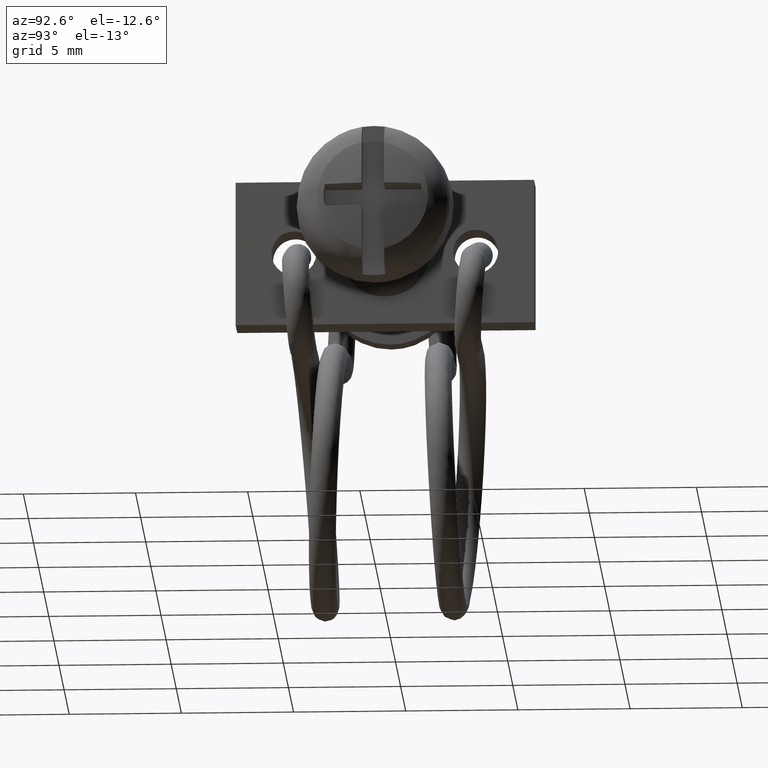
[diagram: clean part render]
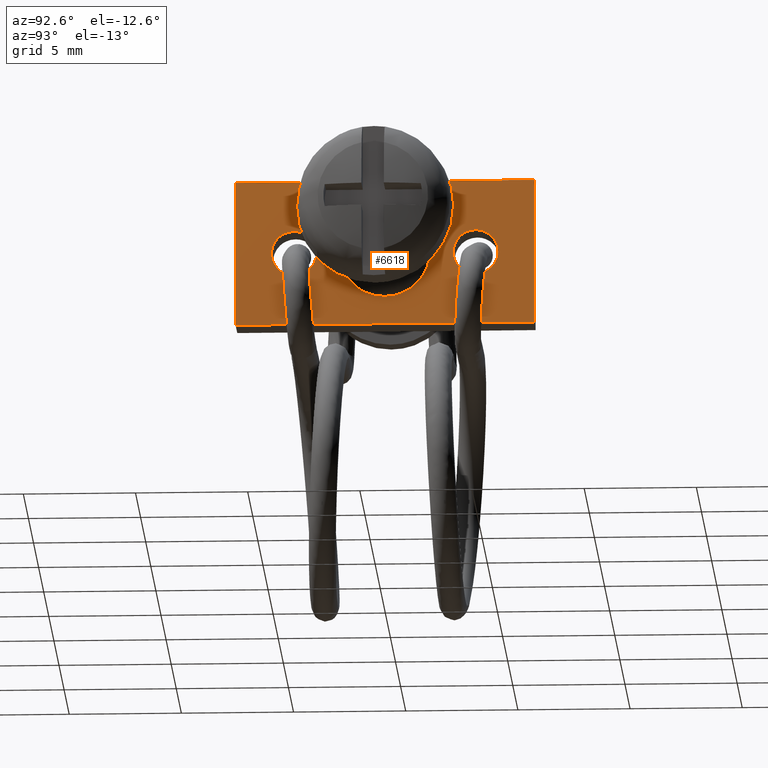
[diagram: same view with one face highlighted and labeled with its STEP entity id]
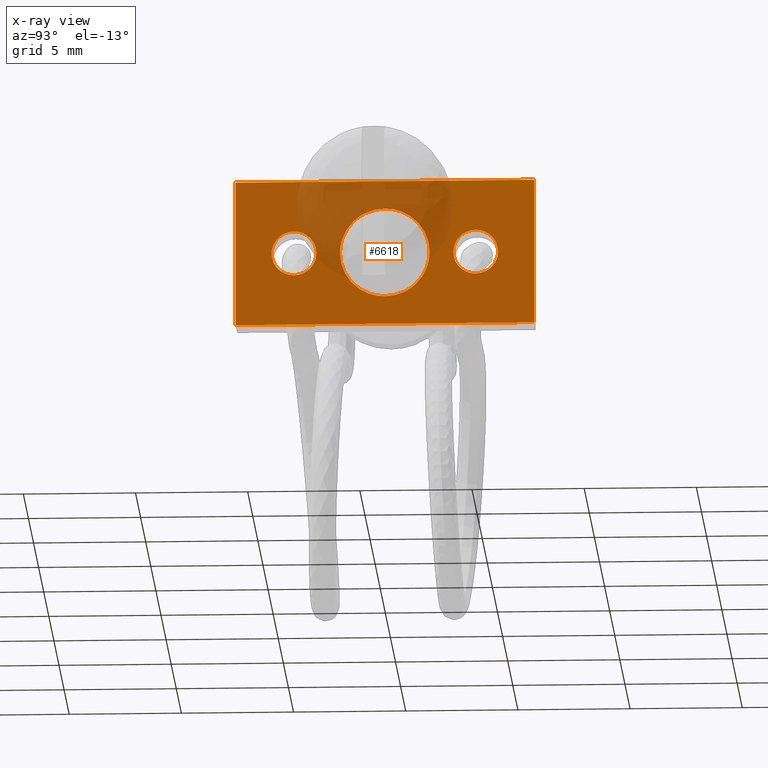
[diagram: x-ray of the same camera — body ghosted, the highlighted face saturated]
A machine part, auxiliary view. The second image highlights one B-rep face of the part: STEP entity #6618.
The next image is the same camera in x-ray: the body ghosted, the highlighted face saturated — about 23% of this face is hidden behind the body in this view.
In plain terms, the highlighted face is a freeform B-spline surface patch.
Its self-contained STEP definition (entity closure, byte-faithful):
#5966=CARTESIAN_POINT('',(-9.500000000000815,-1.376709079029239,1.450748702476584));
#5967=VERTEX_POINT('',#5966);
#5968=CARTESIAN_POINT('',(-9.500000000000002,-1.999999999999975,-0.000000314411481));
#5969=VERTEX_POINT('',#5968);
#5970=CARTESIAN_POINT('',(-9.500000000000815,-1.376709079029239,1.450748702476584));
#5971=CARTESIAN_POINT('',(-9.500000000000780,-1.487115128803505,1.346021764698034));
#5972=CARTESIAN_POINT('',(-9.500000000000657,-1.634626073437236,1.169894739215420));
#5973=CARTESIAN_POINT('',(-9.500000000000483,-1.809012753894810,0.869691408881697));
#5974=CARTESIAN_POINT('',(-9.500000000000320,-1.954013548357849,0.507195466109417));
#5975=CARTESIAN_POINT('',(-9.500000000000084,-2.000080448949208,0.194450650614322));
#5976=CARTESIAN_POINT('',(-9.500000000000002,-1.999999999999975,-0.000000314411481));
#5977=B_SPLINE_CURVE_WITH_KNOTS('',3,(#5970,#5971,#5972,#5973,#5974,#5975,#5976),.UNSPECIFIED.,.F.,.U.,(4,1,1,1,4),(8.134953E-009,0.456516053018496,0.684775122625564,1.039841108499463,1.623167387036368),.UNSPECIFIED.);
#5978=EDGE_CURVE('',#5967,#5969,#5977,.T.);
#5980=CARTESIAN_POINT('',(-9.500000000000000,0.0,-2.000000000000199));
#5981=VERTEX_POINT('',#5980);
#5982=CARTESIAN_POINT('',(-9.500000000000002,-1.999999999999975,-0.000000314411481));
#5983=CARTESIAN_POINT('',(-9.500000000000011,-2.000044116203131,-0.163629287434392));
#5984=CARTESIAN_POINT('',(-9.499999999999993,-1.965660920491134,-0.441768231659991));
#5985=CARTESIAN_POINT('',(-9.499999999999995,-1.834767858886433,-0.822247915414405));
#5986=CARTESIAN_POINT('',(-9.500000000000007,-1.646511593944460,-1.159400305872440));
#5987=CARTESIAN_POINT('',(-9.499999999999957,-1.409954496513490,-1.433637364359804));
#5988=CARTESIAN_POINT('',(-9.500000000000078,-1.136013336266264,-1.655631689837535));
#5989=CARTESIAN_POINT('',(-9.499999999999902,-0.873517622762000,-1.808619379248497));
#5990=CARTESIAN_POINT('',(-9.500000000000050,-0.490829681713295,-1.956265768854421));
#5991=CARTESIAN_POINT('',(-9.500000000000052,-0.196361985343634,-2.000087536257534));
#5992=CARTESIAN_POINT('',(-9.500000000000000,0.0,-2.000000000000199));
#5993=B_SPLINE_CURVE_WITH_KNOTS('',3,(#5982,#5983,#5984,#5985,#5986,#5987,#5988,#5989,#5990,#5991,#5992),.UNSPECIFIED.,.F.,.U.,(4,1,1,1,1,1,1,1,4),(0.000000029857418,0.490876155249593,0.834491673996547,1.202655308193045,1.644427914901978,1.914412801574329,2.258033519522070,2.552560821894600,3.141612188542830),.UNSPECIFIED.);
#5994=EDGE_CURVE('',#5969,#5981,#5993,.T.);
#5996=CARTESIAN_POINT('',(-9.500000000000814,1.376709079029236,-1.450748702476979));
#5997=VERTEX_POINT('',#5996);
#5998=CARTESIAN_POINT('',(-9.500000000000000,0.0,-2.000000000000199));
#5999=CARTESIAN_POINT('',(-9.500000000000108,0.166084521113137,-2.000042704171178));
#6000=CARTESIAN_POINT('',(-9.500000000000252,0.411226054860074,-1.969281259777765));
#6001=CARTESIAN_POINT('',(-9.500000000000435,0.750912095307538,-1.861042457527884));
#6002=CARTESIAN_POINT('',(-9.500000000000691,1.058069195873086,-1.712385451306863));
#6003=CARTESIAN_POINT('',(-9.500000000000679,1.267730295617099,-1.554203975134609));
#6004=CARTESIAN_POINT('',(-9.500000000000814,1.376709079029236,-1.450748702476979));
#6005=B_SPLINE_CURVE_WITH_KNOTS('',3,(#5998,#5999,#6000,#6001,#6002,#6003,#6004),.UNSPECIFIED.,.F.,.U.,(4,1,1,1,4),(7.946821E-009,0.498240548504049,0.735501835958479,1.067655790018470,1.518445297156764),.UNSPECIFIED.);
#6006=EDGE_CURVE('',#5981,#5997,#6005,.T.);
#6081=CARTESIAN_POINT('',(-9.500000000000000,0.0,1.999999999999801));
#6082=VERTEX_POINT('',#6081);
#6083=CARTESIAN_POINT('',(-9.500000000000000,0.0,1.999999999999801));
#6084=CARTESIAN_POINT('',(-9.500000000000132,-0.181907486150735,2.000072001593793));
#6085=CARTESIAN_POINT('',(-9.500000000000245,-0.442843831285815,1.964133143003403));
#6086=CARTESIAN_POINT('',(-9.500000000000480,-0.817324124900658,1.834967883135235));
#6087=CARTESIAN_POINT('',(-9.500000000000643,-1.104515735034438,1.680926534298437));
#6088=CARTESIAN_POINT('',(-9.500000000000780,-1.296400611072659,1.526967336939438));
#6089=CARTESIAN_POINT('',(-9.500000000000815,-1.376709079029239,1.450748702476584));
#6090=B_SPLINE_CURVE_WITH_KNOTS('',3,(#6083,#6084,#6085,#6086,#6087,#6088,#6089),.UNSPECIFIED.,.F.,.U.,(4,1,1,1,4),(7.946682E-009,0.545694118019529,0.782943469145410,1.186285554999730,1.518445297156766),.UNSPECIFIED.);
#6091=EDGE_CURVE('',#6082,#5967,#6090,.T.);
#6132=CARTESIAN_POINT('',(-9.499999999999998,1.999999999999975,0.000000314411100));
#6133=VERTEX_POINT('',#6132);
#6134=CARTESIAN_POINT('',(-9.500000000000814,1.376709079029236,-1.450748702476979));
#6135=CARTESIAN_POINT('',(-9.500000000000760,1.487113401391050,-1.346020246561402));
#6136=CARTESIAN_POINT('',(-9.500000000000659,1.634628442392524,-1.169896380188224));
#6137=CARTESIAN_POINT('',(-9.500000000000481,1.809010877484358,-0.869690546883229));
#6138=CARTESIAN_POINT('',(-9.500000000000295,1.954015781879980,-0.507196412897680));
#6139=CARTESIAN_POINT('',(-9.500000000000084,2.000079648968578,-0.194450212014774));
#6140=CARTESIAN_POINT('',(-9.499999999999998,1.999999999999975,0.000000314411100));
#6141=B_SPLINE_CURVE_WITH_KNOTS('',3,(#6134,#6135,#6136,#6137,#6138,#6139,#6140),.UNSPECIFIED.,.F.,.U.,(4,1,1,1,4),(8.135005E-009,0.456516053018525,0.684775122625586,1.039841108499481,1.623167387036384),.UNSPECIFIED.);
#6142=EDGE_CURVE('',#5997,#6133,#6141,.T.);
#6144=CARTESIAN_POINT('',(-9.499999999999998,1.999999999999975,0.000000314411100));
#6145=CARTESIAN_POINT('',(-9.499999999999991,2.000089254815843,0.196359187987618));
#6146=CARTESIAN_POINT('',(-9.500000000000009,1.947760160714175,0.548100757109093));
#6147=CARTESIAN_POINT('',(-9.499999999999989,1.750260977529604,1.001145324245661));
#6148=CARTESIAN_POINT('',(-9.499999999999993,1.507262218224176,1.332974274035051));
#6149=CARTESIAN_POINT('',(-9.499999999999986,1.194439502088072,1.623625262949756));
#6150=CARTESIAN_POINT('',(-9.500000000000016,0.867774863905527,1.816698224355190));
#6151=CARTESIAN_POINT('',(-9.499999999999984,0.449935319837691,1.963289719253419));
#6152=CARTESIAN_POINT('',(-9.500000000000096,0.179994419190639,2.000068684007718));
#6153=CARTESIAN_POINT('',(-9.500000000000000,0.0,1.999999999999801));
#6154=B_SPLINE_CURVE_WITH_KNOTS('',3,(#6144,#6145,#6146,#6147,#6148,#6149,#6150,#6151,#6152,#6153),.UNSPECIFIED.,.F.,.U.,(4,1,1,1,1,1,1,4),(0.000000029858207,0.589051617702901,1.055386999545425,1.472633917550332,1.816235903106768,2.331665042406568,2.601651754572451,3.141612188542815),.UNSPECIFIED.);
#6155=EDGE_CURVE('',#6133,#6082,#6154,.T.);
#6178=CARTESIAN_POINT('',(-9.500000000001439,-4.738354523422574,0.725374265763581));
#6179=VERTEX_POINT('',#6178);
#6180=CARTESIAN_POINT('',(-9.500000000000000,-5.049999999999899,-0.000000449919454));
#6181=VERTEX_POINT('',#6180);
#6182=CARTESIAN_POINT('',(-9.500000000001439,-4.738354523422574,0.725374265763581));
#6183=CARTESIAN_POINT('',(-9.500000000001338,-4.787418062386045,0.678825423039063));
#6184=CARTESIAN_POINT('',(-9.500000000001146,-4.881581770547586,0.569279895143084));
#6185=CARTESIAN_POINT('',(-9.500000000000648,-5.010887027732976,0.329631566267178));
#6186=CARTESIAN_POINT('',(-9.500000000000249,-5.050104549468335,0.126825837823413));
#6187=CARTESIAN_POINT('',(-9.500000000000000,-5.049999999999899,-0.000000449919454));
#6188=B_SPLINE_CURVE_WITH_KNOTS('',3,(#6182,#6183,#6184,#6185,#6186,#6187),.UNSPECIFIED.,.F.,.U.,(4,1,1,4),(0.000000010579796,0.202895979581082,0.431151472596185,0.811583909418584),.UNSPECIFIED.);
#6189=EDGE_CURVE('',#6179,#6181,#6188,.T.);
#6191=CARTESIAN_POINT('',(-9.500000000000000,-4.050000000000000,-1.000000000000199));
#6192=VERTEX_POINT('',#6191);
#6193=CARTESIAN_POINT('',(-9.500000000000000,-5.049999999999899,-0.000000449919454));
#6194=CARTESIAN_POINT('',(-9.499999999999995,-5.050105110180470,-0.122737245504713));
#6195=CARTESIAN_POINT('',(-9.500000000000018,-5.015681003673338,-0.306733685313235));
#6196=CARTESIAN_POINT('',(-9.500000000000000,-4.913464619621739,-0.512839644572620));
#6197=CARTESIAN_POINT('',(-9.499999999999982,-4.813456759475157,-0.653014365689045));
#6198=CARTESIAN_POINT('',(-9.500000000000064,-4.697203392797114,-0.769272574159498));
#6199=CARTESIAN_POINT('',(-9.499999999999998,-4.538836289407315,-0.879361608178679));
#6200=CARTESIAN_POINT('',(-9.500000000000018,-4.328137765123507,-0.972772789439482));
#6201=CARTESIAN_POINT('',(-9.500000000000016,-4.152270131751509,-1.000052587543137));
#6202=CARTESIAN_POINT('',(-9.500000000000000,-4.050000000000000,-1.000000000000199));
#6203=B_SPLINE_CURVE_WITH_KNOTS('',3,(#6193,#6194,#6195,#6196,#6197,#6198,#6199,#6200,#6201,#6202),.UNSPECIFIED.,.F.,.U.,(4,1,1,1,1,1,1,4),(0.000000039961103,0.368157326773437,0.552239904324071,0.687236242789078,0.883569860382519,1.043110182634159,1.264010449412642,1.570805929295552),.UNSPECIFIED.);
#6204=EDGE_CURVE('',#6181,#6192,#6203,.T.);
#6206=CARTESIAN_POINT('',(-9.500000000001439,-3.361645476577425,-0.725374265763980));
#6207=VERTEX_POINT('',#6206);
#6208=CARTESIAN_POINT('',(-9.500000000000000,-4.050000000000000,-1.000000000000199));
#6209=CARTESIAN_POINT('',(-9.500000000000133,-3.982776803582577,-1.000009497977958));
#6210=CARTESIAN_POINT('',(-9.500000000000425,-3.852295705180737,-0.986785599881482));
#6211=CARTESIAN_POINT('',(-9.500000000000910,-3.609152586263981,-0.912539963478159));
#6212=CARTESIAN_POINT('',(-9.500000000001261,-3.450508364433176,-0.809839300214873));
#6213=CARTESIAN_POINT('',(-9.500000000001439,-3.361645476577425,-0.725374265763980));
#6214=B_SPLINE_CURVE_WITH_KNOTS('',3,(#6208,#6209,#6210,#6211,#6212,#6213),.UNSPECIFIED.,.F.,.U.,(4,1,1,4),(8.553137E-009,0.201668597099933,0.391468694515761,0.759222668002391),.UNSPECIFIED.);
#6215=EDGE_CURVE('',#6192,#6207,#6214,.T.);
#6286=CARTESIAN_POINT('',(-9.500000000000000,-4.050000000000000,0.999999999999801));
#6287=VERTEX_POINT('',#6286);
#6288=CARTESIAN_POINT('',(-9.500000000000000,-4.050000000000000,0.999999999999801));
#6289=CARTESIAN_POINT('',(-9.500000000000153,-4.117222979962005,1.000009233305804));
#6290=CARTESIAN_POINT('',(-9.500000000000407,-4.251660351321803,0.986386441003243));
#6291=CARTESIAN_POINT('',(-9.500000000000956,-4.494498982117354,0.910656711613585));
#6292=CARTESIAN_POINT('',(-9.500000000001238,-4.652351628803875,0.807100114617580));
#6293=CARTESIAN_POINT('',(-9.500000000001439,-4.738354523422574,0.725374265763581));
#6294=B_SPLINE_CURVE_WITH_KNOTS('',3,(#6288,#6289,#6290,#6291,#6292,#6293),.UNSPECIFIED.,.F.,.U.,(4,1,1,4),(8.553351E-009,0.201668597100032,0.403335791278576,0.759222668002388),.UNSPECIFIED.);
#6295=EDGE_CURVE('',#6287,#6179,#6294,.T.);
#6334=CARTESIAN_POINT('',(-9.500000000000000,-3.050000000000101,0.000000449919051));
#6335=VERTEX_POINT('',#6334);
#6336=CARTESIAN_POINT('',(-9.500000000001439,-3.361645476577425,-0.725374265763980));
#6337=CARTESIAN_POINT('',(-9.500000000001259,-3.275707716789848,-0.643964538935985));
#6338=CARTESIAN_POINT('',(-9.500000000001055,-3.176646541204527,-0.508976241186064));
#6339=CARTESIAN_POINT('',(-9.500000000000449,-3.074358732882408,-0.257810776177153));
#6340=CARTESIAN_POINT('',(-9.500000000000267,-3.049934981242007,-0.105684288132807));
#6341=CARTESIAN_POINT('',(-9.500000000000000,-3.050000000000101,0.000000449919051));
#6342=B_SPLINE_CURVE_WITH_KNOTS('',3,(#6336,#6337,#6338,#6339,#6340,#6341),.UNSPECIFIED.,.F.,.U.,(4,1,1,4),(0.000000010579376,0.355071599251446,0.494558198732274,0.811583909418583),.UNSPECIFIED.);
#6343=EDGE_CURVE('',#6207,#6335,#6342,.T.);
#6345=CARTESIAN_POINT('',(-9.500000000000000,-3.050000000000101,0.000000449919051));
#6346=CARTESIAN_POINT('',(-9.499999999999991,-3.049990936190874,0.069540645731734));
#6347=CARTESIAN_POINT('',(-9.500000000000011,-3.065420393355500,0.216799720362331));
#6348=CARTESIAN_POINT('',(-9.499999999999957,-3.144332999545902,0.450975673398829));
#6349=CARTESIAN_POINT('',(-9.500000000000108,-3.295958708357728,0.677905998259636));
#6350=CARTESIAN_POINT('',(-9.499999999999924,-3.508868619516251,0.854810699446177));
#6351=CARTESIAN_POINT('',(-9.500000000000112,-3.763680332144181,0.971509338427994));
#6352=CARTESIAN_POINT('',(-9.499999999999927,-3.947731470854623,1.000049725987418));
#6353=CARTESIAN_POINT('',(-9.500000000000000,-4.050000000000000,0.999999999999801));
#6354=B_SPLINE_CURVE_WITH_KNOTS('',3,(#6345,#6346,#6347,#6348,#6349,#6350,#6351,#6352,#6353),.UNSPECIFIED.,.F.,.U.,(4,1,1,1,1,1,4),(0.000000039961002,0.208621811650143,0.441789658292062,0.736321739270893,1.018566480254052,1.264010449412582,1.570805929295559),.UNSPECIFIED.);
#6355=EDGE_CURVE('',#6335,#6287,#6354,.T.);
#6378=CARTESIAN_POINT('',(-9.500000000001439,3.361645476577521,0.725374265763581));
#6379=VERTEX_POINT('',#6378);
#6380=CARTESIAN_POINT('',(-9.500000000000000,3.050000000000196,-0.000000449919452));
#6381=VERTEX_POINT('',#6380);
#6382=CARTESIAN_POINT('',(-9.500000000001439,3.361645476577521,0.725374265763581));
#6383=CARTESIAN_POINT('',(-9.500000000001354,3.312580340018933,0.678826069210260));
#6384=CARTESIAN_POINT('',(-9.500000000001151,3.226723757327473,0.578941428049965));
#6385=CARTESIAN_POINT('',(-9.500000000000814,3.137020314992020,0.419914551150343));
#6386=CARTESIAN_POINT('',(-9.500000000000489,3.068700930700791,0.228240085182169));
#6387=CARTESIAN_POINT('',(-9.500000000000158,3.049972682067252,0.088769882607745));
#6388=CARTESIAN_POINT('',(-9.500000000000000,3.050000000000196,-0.000000449919452));
#6389=B_SPLINE_CURVE_WITH_KNOTS('',3,(#6382,#6383,#6384,#6385,#6386,#6387,#6388),.UNSPECIFIED.,.F.,.U.,(4,1,1,1,4),(0.000000010579413,0.202895979580832,0.393116882976446,0.545281749367045,0.811583909418586),.UNSPECIFIED.);
#6390=EDGE_CURVE('',#6379,#6381,#6389,.T.);
#6392=CARTESIAN_POINT('',(-9.500000000000000,4.050000000000095,-1.000000000000199));
#6393=VERTEX_POINT('',#6392);
#6394=CARTESIAN_POINT('',(-9.500000000000000,3.050000000000196,-0.000000449919452));
#6395=CARTESIAN_POINT('',(-9.500000000000009,3.049894647297335,-0.122735932329639));
#6396=CARTESIAN_POINT('',(-9.500000000000009,3.085854887019441,-0.314909132990824));
#6397=CARTESIAN_POINT('',(-9.499999999999954,3.220625734949450,-0.578618777745497));
#6398=CARTESIAN_POINT('',(-9.500000000000087,3.383488881539313,-0.760544664393805));
#6399=CARTESIAN_POINT('',(-9.499999999999961,3.596405895850760,-0.900902905435543));
#6400=CARTESIAN_POINT('',(-9.499999999999977,3.812747820713256,-0.981315209536455));
#6401=CARTESIAN_POINT('',(-9.500000000000005,3.972278603847219,-1.000013437102359));
#6402=CARTESIAN_POINT('',(-9.500000000000000,4.050000000000095,-1.000000000000199));
#6403=B_SPLINE_CURVE_WITH_KNOTS('',3,(#6394,#6395,#6396,#6397,#6398,#6399,#6400,#6401,#6402),.UNSPECIFIED.,.F.,.U.,(4,1,1,1,1,1,4),(0.000000039960986,0.368157326773290,0.576783292378518,0.883569860382345,1.092198463549801,1.337642432609469,1.570805929295554),.UNSPECIFIED.);
#6404=EDGE_CURVE('',#6381,#6393,#6403,.T.);
#6406=CARTESIAN_POINT('',(-9.500000000001439,4.738354523422670,-0.725374265763980));
#6407=VERTEX_POINT('',#6406);
#6408=CARTESIAN_POINT('',(-9.500000000000000,4.050000000000095,-1.000000000000199));
#6409=CARTESIAN_POINT('',(-9.500000000000227,4.172597915701522,-1.000097235700601));
#6410=CARTESIAN_POINT('',(-9.500000000000878,4.425579549096968,-0.952853635457049));
#6411=CARTESIAN_POINT('',(-9.500000000001172,4.643784857399647,-0.815311298573489));
#6412=CARTESIAN_POINT('',(-9.500000000001439,4.738354523422670,-0.725374265763980));
#6413=B_SPLINE_CURVE_WITH_KNOTS('',3,(#6408,#6409,#6410,#6411,#6412),.UNSPECIFIED.,.F.,.U.,(4,1,4),(8.553139E-009,0.367753982050391,0.759222668002392),.UNSPECIFIED.);
#6414=EDGE_CURVE('',#6393,#6407,#6413,.T.);
#6485=CARTESIAN_POINT('',(-9.500000000000000,4.050000000000095,0.999999999999801));
#6486=VERTEX_POINT('',#6485);
#6487=CARTESIAN_POINT('',(-9.500000000000000,4.050000000000095,0.999999999999801));
#6488=CARTESIAN_POINT('',(-9.500000000000117,3.990686429727544,1.000003223564262));
#6489=CARTESIAN_POINT('',(-9.500000000000414,3.860198986996918,0.988361307769095));
#6490=CARTESIAN_POINT('',(-9.500000000000872,3.615910429725126,0.916901989722339));
#6491=CARTESIAN_POINT('',(-9.500000000001279,3.450502333006129,0.809848126770524));
#6492=CARTESIAN_POINT('',(-9.500000000001439,3.361645476577521,0.725374265763581));
#6493=B_SPLINE_CURVE_WITH_KNOTS('',3,(#6487,#6488,#6489,#6490,#6491,#6492),.UNSPECIFIED.,.F.,.U.,(4,1,1,4),(8.553357E-009,0.177942749731362,0.391468694515793,0.759222668002389),.UNSPECIFIED.);
#6494=EDGE_CURVE('',#6486,#6379,#6493,.T.);
#6533=CARTESIAN_POINT('',(-9.500000000000000,5.049999999999995,0.000000449919050));
#6534=VERTEX_POINT('',#6533);
#6535=CARTESIAN_POINT('',(-9.500000000001439,4.738354523422670,-0.725374265763980));
#6536=CARTESIAN_POINT('',(-9.500000000001290,4.815049065966680,-0.652667671735013));
#6537=CARTESIAN_POINT('',(-9.500000000001016,4.939826790257786,-0.489444912684047));
#6538=CARTESIAN_POINT('',(-9.500000000000375,5.033244565849441,-0.232488455368724));
#6539=CARTESIAN_POINT('',(-9.500000000000227,5.050004128116552,-0.067630301093617));
#6540=CARTESIAN_POINT('',(-9.500000000000000,5.049999999999995,0.000000449919050));
#6541=B_SPLINE_CURVE_WITH_KNOTS('',3,(#6535,#6536,#6537,#6538,#6539,#6540),.UNSPECIFIED.,.F.,.U.,(4,1,1,4),(0.000000010579462,0.317025721272273,0.608687929000420,0.811583909418584),.UNSPECIFIED.);
#6542=EDGE_CURVE('',#6407,#6534,#6541,.T.);
#6544=CARTESIAN_POINT('',(-9.500000000000000,5.049999999999995,0.000000449919050));
#6545=CARTESIAN_POINT('',(-9.499999999999989,5.050039497868993,0.094089161043813));
#6546=CARTESIAN_POINT('',(-9.500000000000023,5.029053486436554,0.241327051821716));
#6547=CARTESIAN_POINT('',(-9.499999999999995,4.953470181510348,0.440886542432500));
#6548=CARTESIAN_POINT('',(-9.499999999999977,4.841505389724900,0.627766317807797));
#6549=CARTESIAN_POINT('',(-9.500000000000114,4.660224444047136,0.809055149410337));
#6550=CARTESIAN_POINT('',(-9.499999999999830,4.385369883288334,0.960330642933407));
#6551=CARTESIAN_POINT('',(-9.500000000000128,4.172731772286919,1.000107517769276));
#6552=CARTESIAN_POINT('',(-9.500000000000000,4.050000000000095,0.999999999999801));
#6553=B_SPLINE_CURVE_WITH_KNOTS('',3,(#6544,#6545,#6546,#6547,#6548,#6549,#6550,#6551,#6552),.UNSPECIFIED.,.F.,.U.,(4,1,1,1,1,1,4),(0.000000039962194,0.282251835127907,0.441789658292850,0.638148152030808,0.932657835533781,1.202648513626810,1.570805929295553),.UNSPECIFIED.);
#6554=EDGE_CURVE('',#6534,#6486,#6553,.T.);
#6559=CARTESIAN_POINT('',(-9.500000000000000,-7.314334974222019,3.574674987401539));
#6560=CARTESIAN_POINT('',(-9.500000000000000,7.314335330955819,3.574674987401539));
#6561=CARTESIAN_POINT('',(-9.500000000000000,-7.314334974222019,-3.574675161745525));
#6562=CARTESIAN_POINT('',(-9.500000000000000,7.314335330955819,-3.574675161745525));
#6563=B_SPLINE_SURFACE_WITH_KNOTS('',1,1,((#6559,#6561),(#6560,#6562)),.UNSPECIFIED.,.F.,.F.,.U.,(2,2),(2,2),(0.0,14.628670305177840),(0.0,7.149350149147064),.UNSPECIFIED.);
#6564=CARTESIAN_POINT('',(-9.500000000000000,6.650000000000000,3.249999999999800));
#6565=VERTEX_POINT('',#6564);
#6566=CARTESIAN_POINT('',(-9.500000000000000,-6.650000000000000,3.249999999999800));
#6567=VERTEX_POINT('',#6566);
#6568=CARTESIAN_POINT('',(-9.500000000000000,6.650000000000000,3.249999999999800));
#6569=CARTESIAN_POINT('',(-9.500000000000000,-6.650000000000000,3.249999999999800));
#6570=QUASI_UNIFORM_CURVE('',1,(#6568,#6569),.UNSPECIFIED.,.F.,.U.);
#6571=EDGE_CURVE('',#6565,#6567,#6570,.T.);
#6572=ORIENTED_EDGE('',*,*,#6571,.T.);
#6573=CARTESIAN_POINT('',(-9.500000000000000,-6.650000000000000,-3.250000000000200));
#6574=VERTEX_POINT('',#6573);
#6575=CARTESIAN_POINT('',(-9.500000000000000,-6.650000000000000,3.249999999999800));
#6576=CARTESIAN_POINT('',(-9.500000000000000,-6.650000000000000,-3.250000000000200));
#6577=QUASI_UNIFORM_CURVE('',1,(#6575,#6576),.UNSPECIFIED.,.F.,.U.);
#6578=EDGE_CURVE('',#6567,#6574,#6577,.T.);
#6579=ORIENTED_EDGE('',*,*,#6578,.T.);
#6580=CARTESIAN_POINT('',(-9.500000000000000,6.650000000000000,-3.250000000000200));
#6581=VERTEX_POINT('',#6580);
#6582=CARTESIAN_POINT('',(-9.500000000000000,-6.650000000000000,-3.250000000000200));
#6583=CARTESIAN_POINT('',(-9.500000000000000,6.650000000000000,-3.250000000000200));
#6584=QUASI_UNIFORM_CURVE('',1,(#6582,#6583),.UNSPECIFIED.,.F.,.U.);
#6585=EDGE_CURVE('',#6574,#6581,#6584,.T.);
#6586=ORIENTED_EDGE('',*,*,#6585,.T.);
#6587=CARTESIAN_POINT('',(-9.500000000000000,6.650000000000000,-3.250000000000200));
#6588=CARTESIAN_POINT('',(-9.500000000000000,6.650000000000000,3.249999999999800));
#6589=QUASI_UNIFORM_CURVE('',1,(#6587,#6588),.UNSPECIFIED.,.F.,.U.);
#6590=EDGE_CURVE('',#6581,#6565,#6589,.T.);
#6591=ORIENTED_EDGE('',*,*,#6590,.T.);
#6592=EDGE_LOOP('',(#6572,#6579,#6586,#6591));
#6593=FACE_OUTER_BOUND('',#6592,.T.);
#6594=ORIENTED_EDGE('',*,*,#6404,.F.);
#6595=ORIENTED_EDGE('',*,*,#6390,.F.);
#6596=ORIENTED_EDGE('',*,*,#6494,.F.);
#6597=ORIENTED_EDGE('',*,*,#6554,.F.);
#6598=ORIENTED_EDGE('',*,*,#6542,.F.);
#6599=ORIENTED_EDGE('',*,*,#6414,.F.);
#6600=EDGE_LOOP('',(#6594,#6595,#6596,#6597,#6598,#6599));
#6601=FACE_BOUND('',#6600,.T.);
#6602=ORIENTED_EDGE('',*,*,#6204,.F.);
#6603=ORIENTED_EDGE('',*,*,#6189,.F.);
#6604=ORIENTED_EDGE('',*,*,#6295,.F.);
#6605=ORIENTED_EDGE('',*,*,#6355,.F.);
#6606=ORIENTED_EDGE('',*,*,#6343,.F.);
#6607=ORIENTED_EDGE('',*,*,#6215,.F.);
#6608=EDGE_LOOP('',(#6602,#6603,#6604,#6605,#6606,#6607));
#6609=FACE_BOUND('',#6608,.T.);
#6610=ORIENTED_EDGE('',*,*,#5994,.F.);
#6611=ORIENTED_EDGE('',*,*,#5978,.F.);
#6612=ORIENTED_EDGE('',*,*,#6091,.F.);
#6613=ORIENTED_EDGE('',*,*,#6155,.F.);
#6614=ORIENTED_EDGE('',*,*,#6142,.F.);
#6615=ORIENTED_EDGE('',*,*,#6006,.F.);
#6616=EDGE_LOOP('',(#6610,#6611,#6612,#6613,#6614,#6615));
#6617=FACE_BOUND('',#6616,.T.);
#6618=ADVANCED_FACE('',(#6593,#6601,#6609,#6617),#6563,.F.);